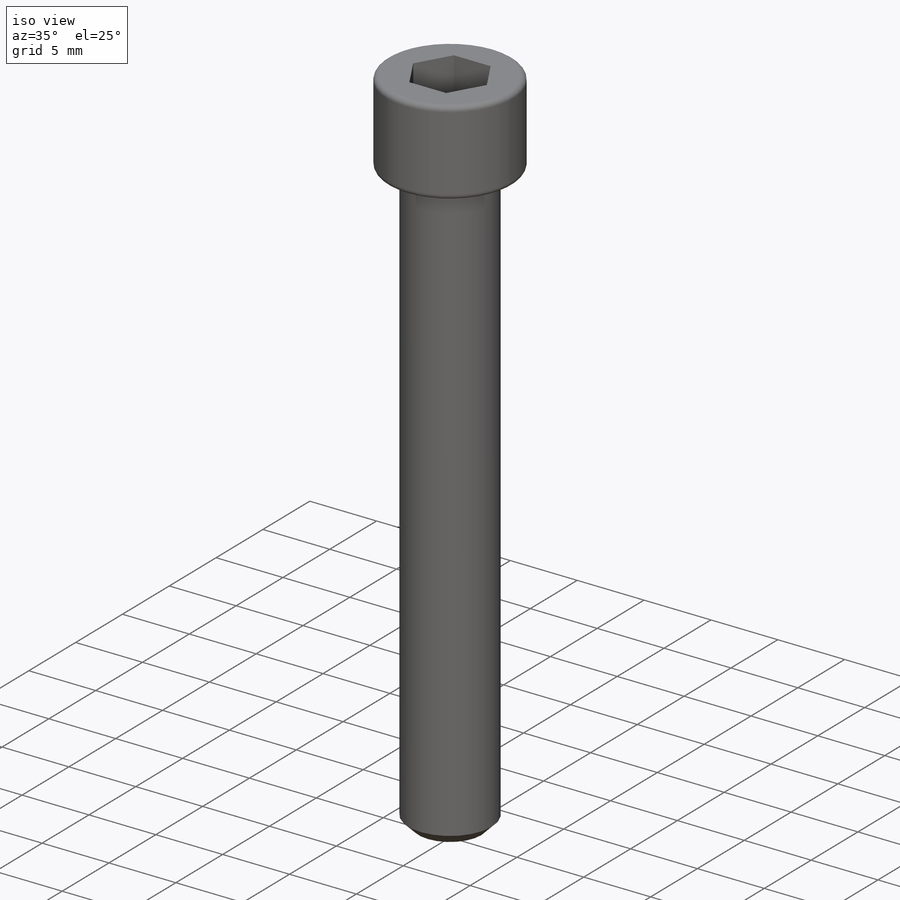
[diagram: iso view]
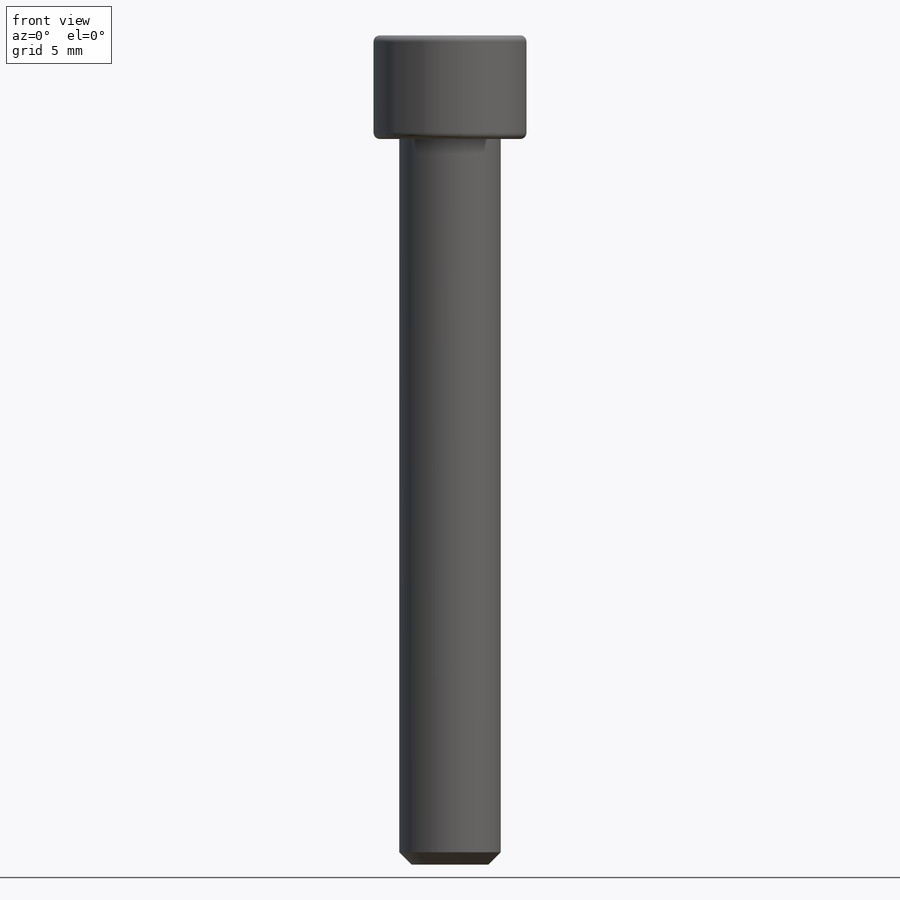
[diagram: front view]
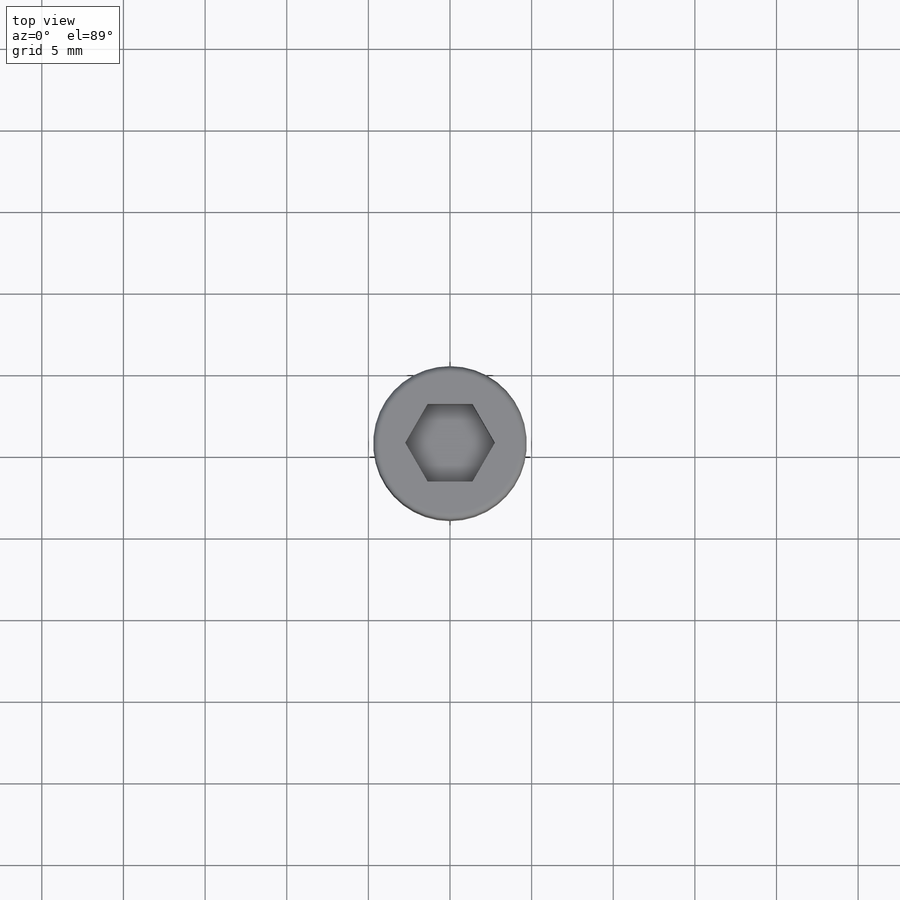
[diagram: top view]
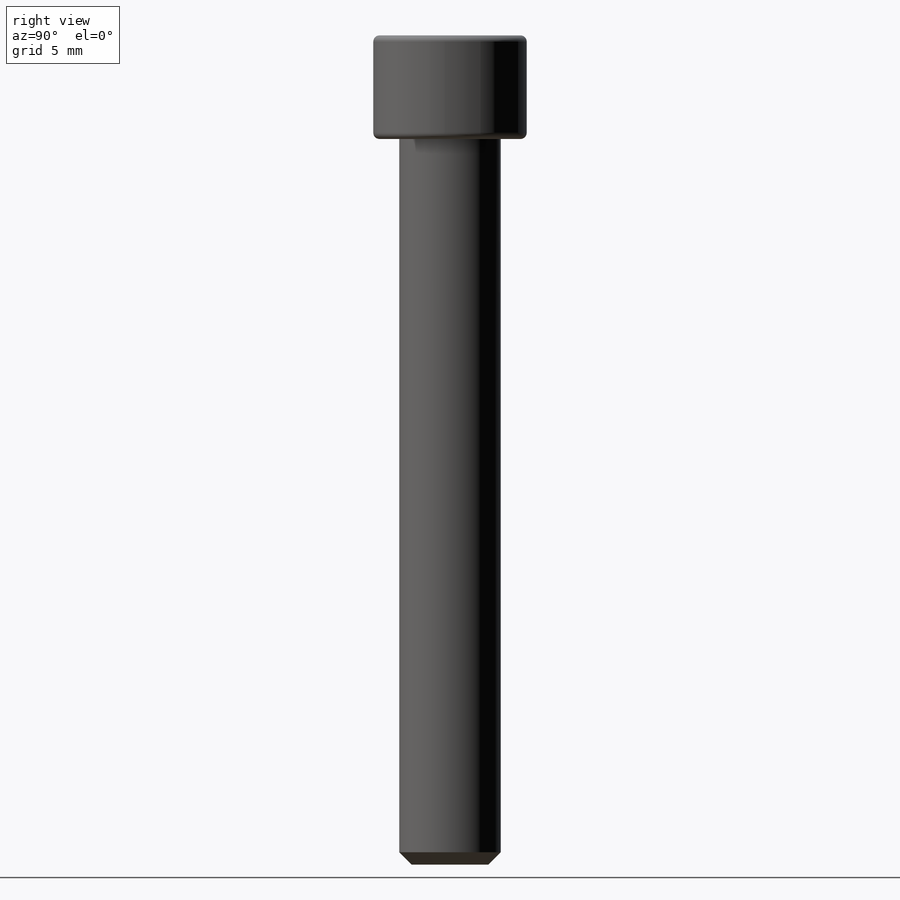
[diagram: right view]
SOLIDWORKS PART (.sldprt)
format: sldprt  version: not decoded by parser v0  size: 159,744 bytes
history: native  units: mm
features: sketch x2, material x1, revolve x1, cut_extrude x1, fillet x1, chamfer x1 (+13 scaffold rows collapsed)
feature tree (20):
  scaffold x13  (default folders/planes/origin — collapsed)
  material  "Material <not specified>"
  sketch  "Sketch1"  dims[c1.D9=0.381mm c1.D11=0.381mm c1.D1=12.7mm c1.D2=6.223mm c1.D3=50.8mm c1.D4=9.398mm c1.D5=12.7mm c1.D6=17.4752mm c1.D7=7.8232mm c1.D8=4.7752mm c2.D9=~4.582719mm c2.D10=2.794mm c2.D11=0.508mm c3.D11=45.0deg c4.D11=0.508mm c4.D12=0.508mm c4.D13=0.254mm c5.D13=~40.893395deg c6.D13=~0.71842mm c7.D13=45.0deg c7.D5=50.8mm c7.D6=6.35mm c7.D1=6.35mm c7.D7=6.223mm c7.D8=9.398mm c7.D9=~4.762492mm c7.D10=3.81mm c7.D12=~1.077631mm c8.D12=45.0deg c9.D12=0.762mm]
  revolve  "Revolve1"  Angle=360deg
  sketch  "Sketch2"  dims[D1=~4.762492mm]
  cut_extrude  "Extrude1"  Depth=3.81mm
  fillet  "Fillet1"  Radius=0.381mm
  chamfer  "Chamfer1"  Distance=0.762mm Angle=45deg
decode coverage: 6 of 6 modeling features carry decoded parameters
note: ~ marks probable driven/reference dimensions
note: suppression state not decoded; provenance and decode notes live in map.json
